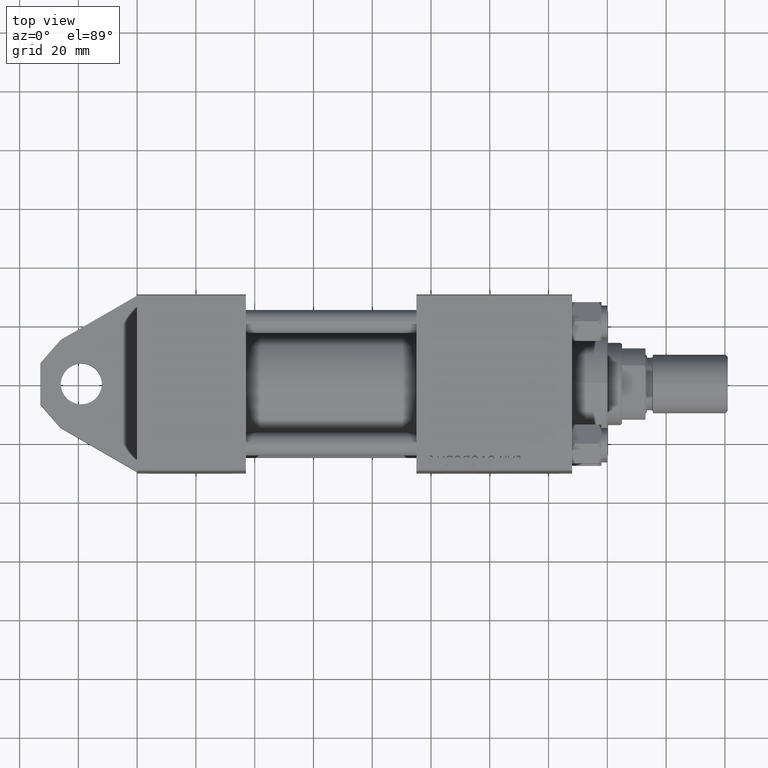
[diagram: clean part render]
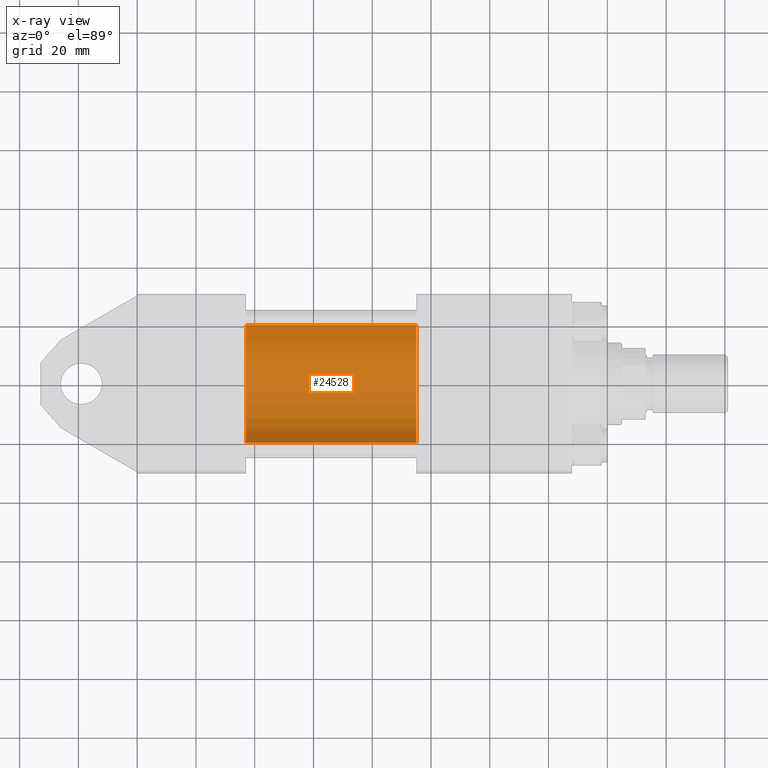
[diagram: x-ray — body ghosted, one internal face saturated and labeled with its STEP entity id]
A machine part, top view, then the same camera in x-ray: the body is ghosted and one INTERNAL B-rep face — a face not visible from any outside direction — is saturated and labeled: STEP entity #24528.
In plain terms, the highlighted cylindrical surface (partial cylindrical patch) has radius 20 mm, axis along (-1, -0, 0).
Its self-contained STEP definition (entity closure, byte-faithful):
#213 = ORIENTED_EDGE ( 'NONE', *, *, #25577, .F. ) ;
#785 = VERTEX_POINT ( 'NONE', #10780 ) ;
#941 = CARTESIAN_POINT ( 'NONE',  ( 95.00000000000000000, -1.527916156705046464E-16, -20.00000000000000000 ) ) ;
#1725 = CIRCLE ( 'NONE', #29552, 20.00000000000000000 ) ;
#1877 = EDGE_CURVE ( 'NONE', #20366, #43088, #1725, .T. ) ;
#3745 = DIRECTION ( 'NONE',  ( 0.000000000000000000, 0.000000000000000000, -1.000000000000000000 ) ) ;
#5498 = EDGE_CURVE ( 'NONE', #43088, #785, #28740, .T. ) ;
#7296 = ORIENTED_EDGE ( 'NONE', *, *, #5498, .T. ) ;
#7879 = VECTOR ( 'NONE', #32722, 1000.000000000000000 ) ;
#8684 = CARTESIAN_POINT ( 'NONE',  ( 95.00000000000000000, -1.527916156705046464E-16, -20.00000000000000000 ) ) ;
#10152 = ORIENTED_EDGE ( 'NONE', *, *, #1877, .T. ) ;
#10607 = CARTESIAN_POINT ( 'NONE',  ( 37.00000000000000000, -2.602085213965210642E-15, 0.000000000000000000 ) ) ;
#10780 = CARTESIAN_POINT ( 'NONE',  ( 37.00000000000000000, -1.527916156705046464E-16, -20.00000000000000000 ) ) ;
#12171 = DIRECTION ( 'NONE',  ( 1.000000000000000000, 0.000000000000000000, 0.000000000000000000 ) ) ;
#15176 = FACE_OUTER_BOUND ( 'NONE', #32062, .T. ) ;
#17738 = LINE ( 'NONE', #34503, #28474 ) ;
#18932 = CYLINDRICAL_SURFACE ( 'NONE', #44206, 20.00000000000000000 ) ;
#20366 = VERTEX_POINT ( 'NONE', #25576 ) ;
#24156 = EDGE_CURVE ( 'NONE', #30382, #785, #35150, .T. ) ;
#24528 = ADVANCED_FACE ( 'NONE', ( #15176 ), #18932, .F. ) ;
#25576 = CARTESIAN_POINT ( 'NONE',  ( 95.00000000000000000, -2.602085213965210642E-15, 20.00000000000000000 ) ) ;
#25577 = EDGE_CURVE ( 'NONE', #20366, #30382, #17738, .T. ) ;
#27667 = AXIS2_PLACEMENT_3D ( 'NONE', #10607, #12171, #3745 ) ;
#28474 = VECTOR ( 'NONE', #32076, 1000.000000000000000 ) ;
#28740 = LINE ( 'NONE', #941, #7879 ) ;
#29521 = CARTESIAN_POINT ( 'NONE',  ( 95.00000000000000000, -2.602085213965210642E-15, 0.000000000000000000 ) ) ;
#29552 = AXIS2_PLACEMENT_3D ( 'NONE', #45539, #37563, #30284 ) ;
#29922 = ORIENTED_EDGE ( 'NONE', *, *, #24156, .F. ) ;
#30284 = DIRECTION ( 'NONE',  ( 0.000000000000000000, 0.000000000000000000, -1.000000000000000000 ) ) ;
#30382 = VERTEX_POINT ( 'NONE', #37114 ) ;
#32062 = EDGE_LOOP ( 'NONE', ( #10152, #7296, #29922, #213 ) ) ;
#32076 = DIRECTION ( 'NONE',  ( -1.000000000000000000, -0.000000000000000000, -0.000000000000000000 ) ) ;
#32722 = DIRECTION ( 'NONE',  ( -1.000000000000000000, -0.000000000000000000, -0.000000000000000000 ) ) ;
#33271 = DIRECTION ( 'NONE',  ( 0.000000000000000000, 0.000000000000000000, 1.000000000000000000 ) ) ;
#34503 = CARTESIAN_POINT ( 'NONE',  ( 95.00000000000000000, -2.602085213965210642E-15, 20.00000000000000000 ) ) ;
#35150 = CIRCLE ( 'NONE', #27667, 20.00000000000000000 ) ;
#37114 = CARTESIAN_POINT ( 'NONE',  ( 37.00000000000000000, -2.602085213965210642E-15, 20.00000000000000000 ) ) ;
#37563 = DIRECTION ( 'NONE',  ( 1.000000000000000000, 0.000000000000000000, 0.000000000000000000 ) ) ;
#43088 = VERTEX_POINT ( 'NONE', #8684 ) ;
#43850 = DIRECTION ( 'NONE',  ( -1.000000000000000000, -0.000000000000000000, -0.000000000000000000 ) ) ;
#44206 = AXIS2_PLACEMENT_3D ( 'NONE', #29521, #43850, #33271 ) ;
#45539 = CARTESIAN_POINT ( 'NONE',  ( 95.00000000000000000, -2.602085213965210642E-15, 0.000000000000000000 ) ) ;